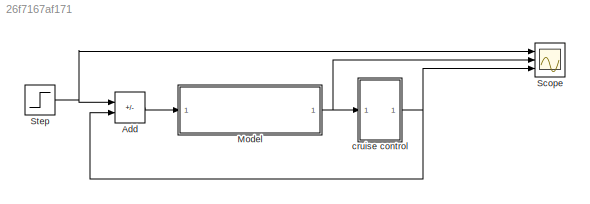
MODEL slx_26f7167af171
KIND model
CONFIG AbsTol = auto
CONFIG EnableMultiTasking = off
CONFIG FixedStep = auto
CONFIG MaxStep = auto
CONFIG MinStep = auto
CONFIG RelTol = 1e-3
CONFIG SampleTimeConstraint = Unconstrained
CONFIG SolverName = VariableStepAuto
CONFIG StartTime = 0.0
CONFIG StopTime = 10.0
WORKSPACE source: mxarray member
WORKSPACE M: Simulink.Parameter (value not decoded)
WORKSPACE b: Simulink.Parameter (value not decoded)
WORKSPACE u: Simulink.Parameter (value not decoded)
BLOCK [Sum] Add
  IconShape = rectangular
  Inputs = +-
  Ports = [2, 1]
BLOCK [ModelReference] Model
  ModelNameDialog = Pid.slx
  ModelReferenceVersion = 1.1
  Ports = [1, 1]
BLOCK [Scope] Scope
  Floating = off
  NumInputPorts = 3
  Ports = [3]
  ScopeSpecificationString = Simulink.scopes.TimeScopeBlockCfg('CurrentConfiguration', extmgr.ConfigurationSet(extmgr.Configuration('Core','General UI',true),extmgr.Configuration('Core','Source UI',true),extmgr.Configuration('Sources','WiredSimulink',true),extmgr.Configuration('Visuals','Time Domain',true,'SerializedDisplays',{struct('MinYLimReal','-75.00000','MaxYLimReal','675.00000','YLabelReal','','MinYLimMag','0.00000','M...<+2795ch>
BLOCK [Step] Step
  After = u
  SampleTime = 0
  Time = 0
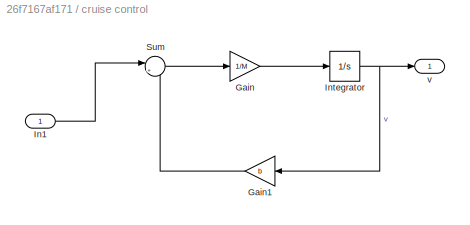
BLOCK [SubSystem] cruise control
  Ports = [1, 1]
  RequestExecContextInheritance = off
BLOCK [Gain] cruise control/Gain
  Gain = 1/M
BLOCK [Gain] cruise control/Gain1
  Gain = b
  NameLocation = top
BLOCK [Inport] cruise control/In1
BLOCK [Integrator] cruise control/Integrator
  Ports = [1, 1]
BLOCK [Sum] cruise control/Sum
  Inputs = |+-
  Ports = [2, 1]
BLOCK [Outport] cruise control/v
LINE Add:1 -> Model:1
NET Model:1 -> Scope:2, cruise control:1
NET Step:1 -> Add:1, Scope:1
LINE cruise control/Gain1:1 -> cruise control/Sum:2
LINE cruise control/Gain:1 -> cruise control/Integrator:1
LINE cruise control/In1:1 -> cruise control/Sum:1
NET cruise control/Integrator:1 -> cruise control/Gain1:1, cruise control/v:1
LINE cruise control/Sum:1 -> cruise control/Gain:1
NET cruise control:1 -> Add:2, Scope:3
note: NET lines group one-source signal fan-out (src -> all destinations, sorted); 1:1 wires keep LINE
